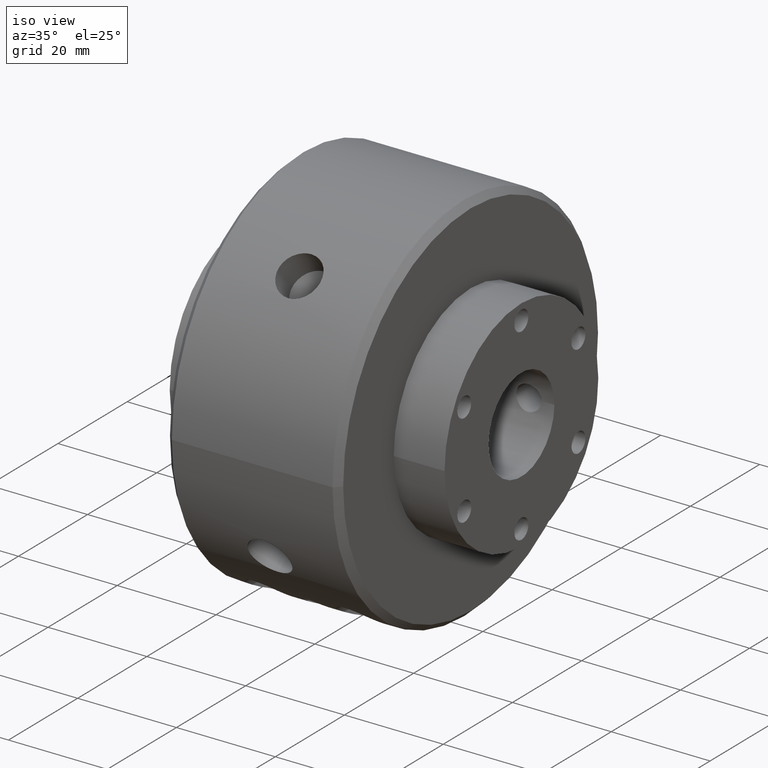
[diagram: clean part render]
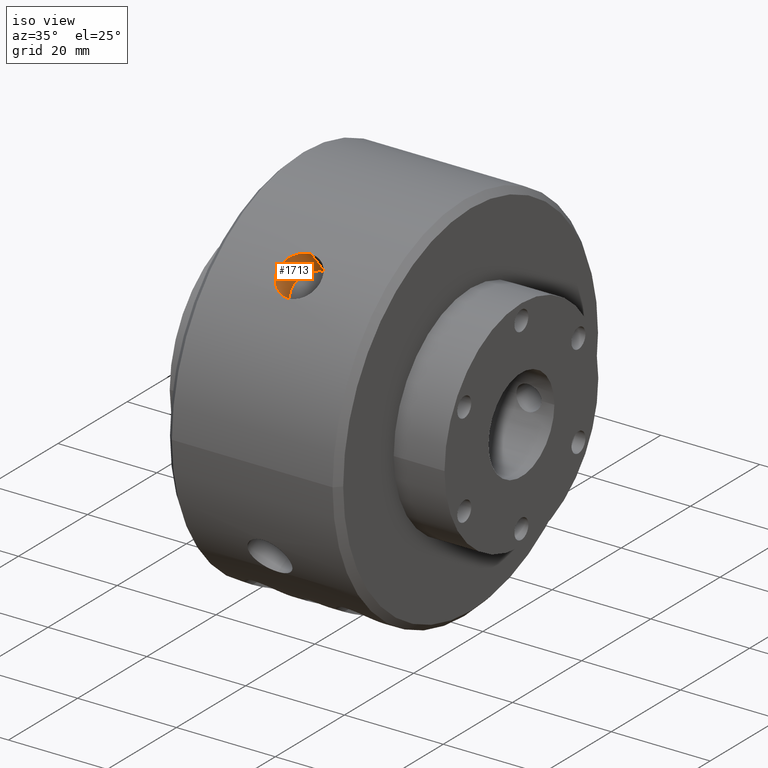
[diagram: same view with one face highlighted and labeled with its STEP entity id]
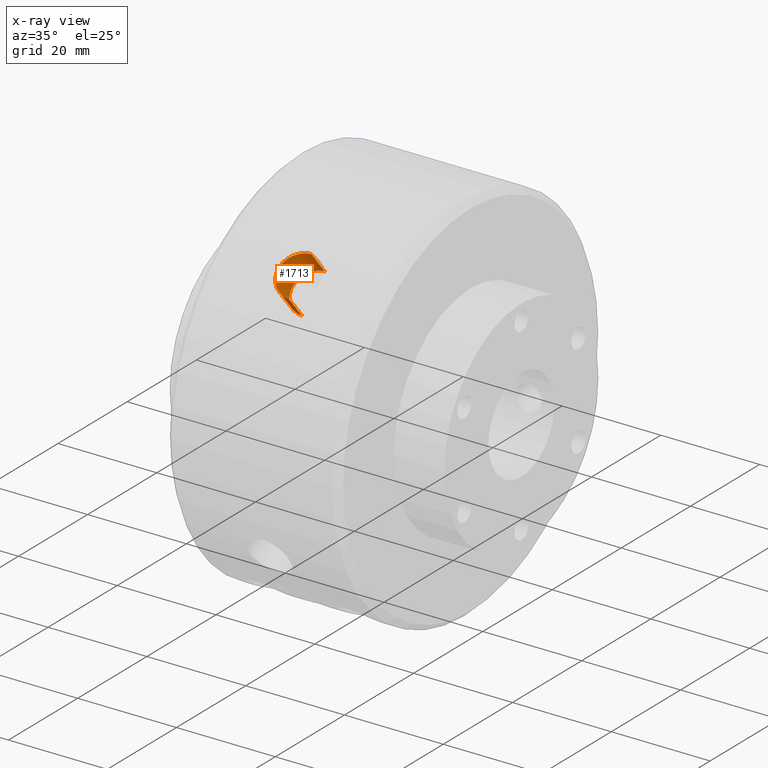
[diagram: x-ray of the same camera — body ghosted, the highlighted face saturated]
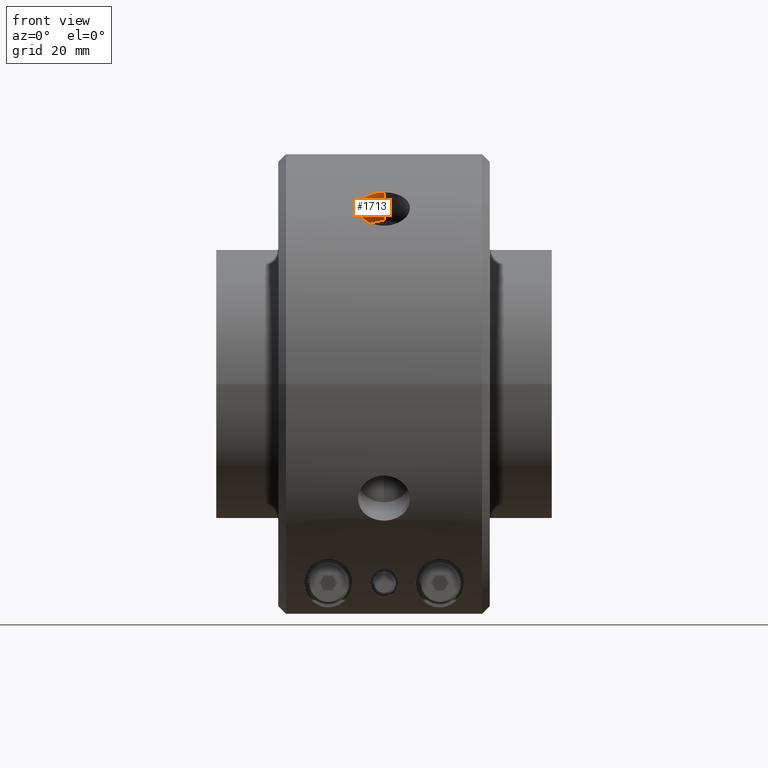
[diagram: same view with one face highlighted and labeled with its STEP entity id]
A machine part, iso view. The second image highlights one B-rep face of the part: STEP entity #1713.
The next image is the same camera in x-ray: the body ghosted, the highlighted face saturated — about 0% of this face is hidden behind the body in this view.
A second angle (front view) of the same face is appended — the face is thin or edge-on in the first view.
In plain terms, the highlighted cylindrical surface (edge-blend (fillet) strip) has radius 4.318 mm, axis along (-0, -0.6428, 0.766).
Its self-contained STEP definition (entity closure, byte-faithful):
#297 = B_SPLINE_CURVE_WITH_KNOTS ( 'NONE', 3,
 ( #4300, #4298, #4297, #4295, #4294, #4293, #4292, #4291, #4289, #4287, #4286, #4285, #4284, #4282, #4281, #4280, #4279, #4277, #4275, #4274, #4273, #4271, #4270, #4269, #4267, #4266, #4265, #4264, #4263, #4262, #4261, #4260, #4259, #4258 ),
 .UNSPECIFIED., .F., .F.,
 ( 4, 2, 2, 2, 2, 2, 2, 2, 2, 2, 2, 2, 2, 2, 2, 2, 4 ),
 ( 1.511320389129148700E-018, 0.0008444300378255147100, 0.001688860075651027500, 0.002533290113476539900, 0.003377720151302052800, 0.004222150189127566100, 0.005066580226953078900, 0.005911010264778592700, 0.006755440302604105500, 0.007599870340429618400, 0.008444300378255132100, 0.009288730416080644100, 0.01013316045390615800, 0.01097759049173167200, 0.01182202052955718500, 0.01266645056738269700, 0.01351088060520820900 ),
 .UNSPECIFIED. ) ;
#1027 = CARTESIAN_POINT ( 'NONE',  ( 1.140956693320836800E-016, -0.9337120674383964100, 0.8482816602520171200 ) ) ;
#1028 = CARTESIAN_POINT ( 'NONE',  ( 1.349146649175886900E-016, -0.6732569567779427300, 1.066829447545439000 ) ) ;
#1029 = CARTESIAN_POINT ( 'NONE',  ( 1.349146648968905600E-016, -0.8277416593588351500, 1.250937146847067600 ) ) ;
#1030 = CARTESIAN_POINT ( 'NONE',  ( 1.577053196130699700E-016, -1.088196770019288700, 1.032389359553645500 ) ) ;
#1344 = VERTEX_POINT ( 'NONE', #1030 ) ;
#1345 = VERTEX_POINT ( 'NONE', #1029 ) ;
#1346 = VERTEX_POINT ( 'NONE', #1028 ) ;
#1347 = VERTEX_POINT ( 'NONE', #1027 ) ;
#1524 = ORIENTED_EDGE ( 'NONE', *, *, #1766, .F. ) ;
#1636 = ORIENTED_EDGE ( 'NONE', *, *, #1769, .F. ) ;
#1639 = ORIENTED_EDGE ( 'NONE', *, *, #1768, .T. ) ;
#1641 = ORIENTED_EDGE ( 'NONE', *, *, #1773, .F. ) ;
#1713 = ADVANCED_FACE ( 'NONE', ( #2558 ), #2567, .F. ) ;
#1766 = EDGE_CURVE ( 'NONE', #1346, #1347, #2695, .T. ) ;
#1768 = EDGE_CURVE ( 'NONE', #1346, #1345, #2693, .T. ) ;
#1769 = EDGE_CURVE ( 'NONE', #1344, #1345, #297, .T. ) ;
#1773 = EDGE_CURVE ( 'NONE', #1347, #1344, #2703, .T. ) ;
#2558 = FACE_OUTER_BOUND ( 'NONE', #3604, .T. ) ;
#2567 = CYLINDRICAL_SURFACE ( 'NONE', #2754, 0.1699999999999999300 ) ;
#2681 = VECTOR ( 'NONE', #4247, 39.37007874015748100 ) ;
#2693 = LINE ( 'NONE', #4302, #2696 ) ;
#2695 = CIRCLE ( 'NONE', #2812, 0.1699999999999999300 ) ;
#2696 = VECTOR ( 'NONE', #4299, 39.37007874015748100 ) ;
#2703 = LINE ( 'NONE', #4254, #2681 ) ;
#2754 = AXIS2_PLACEMENT_3D ( 'NONE', #4493, #4494, #4498 ) ;
#2812 = AXIS2_PLACEMENT_3D ( 'NONE', #4305, #4304, #4303 ) ;
#3604 = EDGE_LOOP ( 'NONE', ( #1524, #1639, #1636, #1641 ) ) ;
#4247 = DIRECTION ( 'NONE',  ( -0.0000000000000000000, -0.6427876096865350300, 0.7660444431189816800 ) ) ;
#4254 = CARTESIAN_POINT ( 'NONE',  ( 1.140956693320836800E-016, -1.094408969860030100, 1.039792771031762500 ) ) ;
#4258 = CARTESIAN_POINT ( 'NONE',  ( 1.349146648968905600E-016, -0.8277416593588351500, 1.250937146847067600 ) ) ;
#4259 = CARTESIAN_POINT ( 'NONE',  ( -0.01109951712579981800, -0.8277416593588351500, 1.250937146847067400 ) ) ;
#4260 = CARTESIAN_POINT ( 'NONE',  ( -0.02237446360282679300, -0.8286762767931431500, 1.250320127991861700 ) ) ;
#4261 = CARTESIAN_POINT ( 'NONE',  ( -0.04417771839389673900, -0.8323229420503305300, 1.247895554250440200 ) ) ;
#4262 = CARTESIAN_POINT ( 'NONE',  ( -0.05477602713136762300, -0.8350159377586752200, 1.246100627244809400 ) ) ;
#4263 = CARTESIAN_POINT ( 'NONE',  ( -0.07536302452062337800, -0.8421271040675425400, 1.241305897080055700 ) ) ;
#4264 = CARTESIAN_POINT ( 'NONE',  ( -0.08530610699219888500, -0.8465556366036382000, 1.238297934012205800 ) ) ;
#4265 = CARTESIAN_POINT ( 'NONE',  ( -0.1037109866019629200, -0.8567338642040164300, 1.231277915488759600 ) ) ;
#4266 = CARTESIAN_POINT ( 'NONE',  ( -0.1122905902323944600, -0.8625195884769189000, 1.227242163034033100 ) ) ;
#4267 = CARTESIAN_POINT ( 'NONE',  ( -0.1281560951712383800, -0.8754963496762300200, 1.218018681686960900 ) ) ;
#4269 = CARTESIAN_POINT ( 'NONE',  ( -0.1351856374496396300, -0.8824784514065616700, 1.212978507469892400 ) ) ;
#4270 = CARTESIAN_POINT ( 'NONE',  ( -0.1474906370191192100, -0.8973286988546712600, 1.202034227047047700 ) ) ;
#4271 = CARTESIAN_POINT ( 'NONE',  ( -0.1528124723707542100, -0.9052924037373406600, 1.196056808918297200 ) ) ;
#4273 = CARTESIAN_POINT ( 'NONE',  ( -0.1613370735577596100, -0.9216425556483832700, 1.183503792153733900 ) ) ;
#4274 = CARTESIAN_POINT ( 'NONE',  ( -0.1645509900758504700, -0.9299914644930479300, 1.176960008869686800 ) ) ;
#4275 = CARTESIAN_POINT ( 'NONE',  ( -0.1688962006656787600, -0.9470100566544308300, 1.163310336541298700 ) ) ;
#4277 = CARTESIAN_POINT ( 'NONE',  ( -0.1700040411730476800, -0.9557277421571777100, 1.156160735924428100 ) ) ;
#4279 = CARTESIAN_POINT ( 'NONE',  ( -0.1699959361590592200, -0.9727301925814341200, 1.141892786938711900 ) ) ;
#4280 = CARTESIAN_POINT ( 'NONE',  ( -0.1689156636375920800, -0.9811058706861618400, 1.134703392078425700 ) ) ;
#4281 = CARTESIAN_POINT ( 'NONE',  ( -0.1645483773550225600, -0.9976089851781744200, 1.120221777230254500 ) ) ;
#4282 = CARTESIAN_POINT ( 'NONE',  ( -0.1612812069955194000, -1.005593032272486200, 1.113053212984945100 ) ) ;
#4284 = CARTESIAN_POINT ( 'NONE',  ( -0.1528017245776701300, -1.020691471191746500, 1.099224145535163500 ) ) ;
#4285 = CARTESIAN_POINT ( 'NONE',  ( -0.1475268226467859300, -1.027917863831819800, 1.092461232464411200 ) ) ;
#4286 = CARTESIAN_POINT ( 'NONE',  ( -0.1350993734948622300, -1.041399474923872900, 1.079617438193044300 ) ) ;
#4287 = CARTESIAN_POINT ( 'NONE',  ( -0.1280655999703284300, -1.047549752647774600, 1.073639292684568400 ) ) ;
#4289 = CARTESIAN_POINT ( 'NONE',  ( -0.1123977801700086200, -1.058746854818468900, 1.062599130660586900 ) ) ;
#4291 = CARTESIAN_POINT ( 'NONE',  ( -0.1036581494592579000, -1.063832637279901400, 1.057496346945128000 ) ) ;
#4292 = CARTESIAN_POINT ( 'NONE',  ( -0.08518421921682221800, -1.072534041837321700, 1.048670173621953700 ) ) ;
#4293 = CARTESIAN_POINT ( 'NONE',  ( -0.07542267298838860300, -1.076193256720724600, 1.044905019500198800 ) ) ;
#4294 = CARTESIAN_POINT ( 'NONE',  ( -0.05483801352261887000, -1.082155926534840600, 1.038728538287742500 ) ) ;
#4295 = CARTESIAN_POINT ( 'NONE',  ( -0.04403565129796648700, -1.084430760826718700, 1.036346785073846600 ) ) ;
#4297 = CARTESIAN_POINT ( 'NONE',  ( -0.02229434265590292400, -1.087432656167434600, 1.033196473213470000 ) ) ;
#4298 = CARTESIAN_POINT ( 'NONE',  ( -0.01124202327937308600, -1.088196770019288900, 1.032389359553646000 ) ) ;
#4299 = DIRECTION ( 'NONE',  ( -0.0000000000000000000, -0.6427876096865350300, 0.7660444431189816800 ) ) ;
#4300 = CARTESIAN_POINT ( 'NONE',  ( 1.577053196130699700E-016, -1.088196770019288700, 1.032389359553645500 ) ) ;
#4302 = CARTESIAN_POINT ( 'NONE',  ( 1.349146649175886900E-016, -0.8339538591995764300, 1.258340558325184300 ) ) ;
#4303 = DIRECTION ( 'NONE',  ( 0.0000000000000000000, -0.7660444431189817900, -0.6427876096865349200 ) ) ;
#4304 = DIRECTION ( 'NONE',  ( -0.0000000000000000000, -0.6427876096865350300, 0.7660444431189816800 ) ) ;
#4305 = CARTESIAN_POINT ( 'NONE',  ( 1.140956693320836800E-016, -0.8034845121081695100, 0.9575555538987280400 ) ) ;
#4493 = CARTESIAN_POINT ( 'NONE',  ( 1.140956693320836800E-016, -0.9641814145298032200, 1.149066664678473500 ) ) ;
#4494 = DIRECTION ( 'NONE',  ( -0.0000000000000000000, -0.6427876096865350300, 0.7660444431189816800 ) ) ;
#4498 = DIRECTION ( 'NONE',  ( 0.0000000000000000000, -0.7660444431189817900, -0.6427876096865349200 ) ) ;